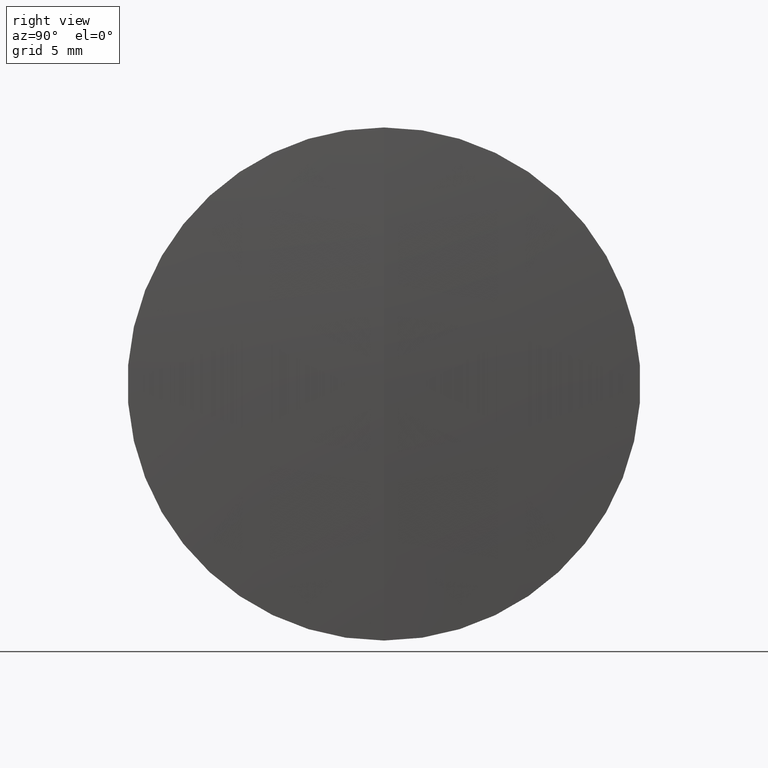
[diagram: clean part render]
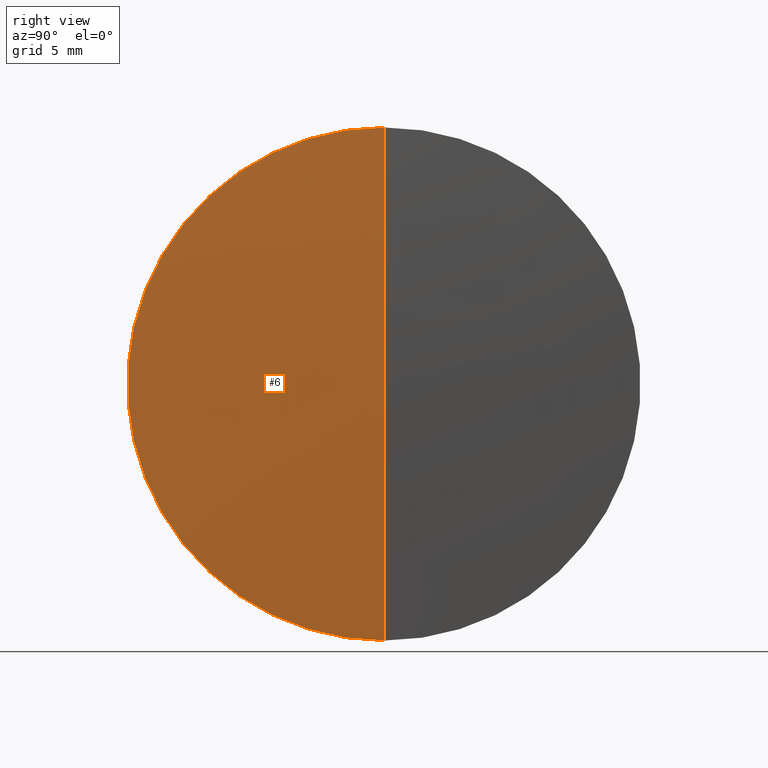
[diagram: same view with one face highlighted and labeled with its STEP entity id]
A machine part, right view. The second image highlights one B-rep face of the part: STEP entity #6.
In plain terms, the highlighted spherical surface has radius 263.988 mm.
Its self-contained STEP definition (entity closure, byte-faithful):
#6 = ADVANCED_FACE ( 'NONE', ( #157 ), #175, .T. ) ;
#15 = AXIS2_PLACEMENT_3D ( 'NONE', #79, #249, #52 ) ;
#31 = VERTEX_POINT ( 'NONE', #293 ) ;
#36 = CIRCLE ( 'NONE', #90, 263.9880000000000000 ) ;
#52 = DIRECTION ( 'NONE',  ( 0.0000000000000000000, -1.224646799147353500E-016, 1.000000000000000000 ) ) ;
#56 = CIRCLE ( 'NONE', #15, 263.9880000000000000 ) ;
#76 = AXIS2_PLACEMENT_3D ( 'NONE', #94, #273, #95 ) ;
#78 = EDGE_CURVE ( 'NONE', #148, #31, #181, .T. ) ;
#79 = CARTESIAN_POINT ( 'NONE',  ( 0.2512281870269972300, 0.0000000000000000000, 0.0000000000000000000 ) ) ;
#89 = DIRECTION ( 'NONE',  ( 0.0000000000000000000, -1.000000000000000000, 0.0000000000000000000 ) ) ;
#90 = AXIS2_PLACEMENT_3D ( 'NONE', #287, #89, #262 ) ;
#94 = CARTESIAN_POINT ( 'NONE',  ( 0.2512281870269972300, 0.0000000000000000000, 0.0000000000000000000 ) ) ;
#95 = DIRECTION ( 'NONE',  ( 0.0000000000000000000, 0.0000000000000000000, 1.000000000000000000 ) ) ;
#119 = DIRECTION ( 'NONE',  ( -1.000000000000000000, -0.0000000000000000000, -0.0000000000000000000 ) ) ;
#132 = ORIENTED_EDGE ( 'NONE', *, *, #78, .F. ) ;
#148 = VERTEX_POINT ( 'NONE', #307 ) ;
#157 = FACE_OUTER_BOUND ( 'NONE', #226, .T. ) ;
#175 = SPHERICAL_SURFACE ( 'NONE', #76, 263.9880000000000000 ) ;
#181 = CIRCLE ( 'NONE', #271, 15.74999999999994100 ) ;
#184 = CARTESIAN_POINT ( 'NONE',  ( 264.2392281870269800, 0.0000000000000000000, 1.616460296066557600E-014 ) ) ;
#201 = EDGE_CURVE ( 'NONE', #309, #31, #36, .T. ) ;
#226 = EDGE_LOOP ( 'NONE', ( #264, #272, #132 ) ) ;
#249 = DIRECTION ( 'NONE',  ( -0.0000000000000000000, 1.000000000000000000, 1.224646799147353200E-016 ) ) ;
#262 = DIRECTION ( 'NONE',  ( 0.0000000000000000000, 0.0000000000000000000, -1.000000000000000000 ) ) ;
#264 = ORIENTED_EDGE ( 'NONE', *, *, #336, .F. ) ;
#271 = AXIS2_PLACEMENT_3D ( 'NONE', #290, #119, #315 ) ;
#272 = ORIENTED_EDGE ( 'NONE', *, *, #201, .T. ) ;
#273 = DIRECTION ( 'NONE',  ( 0.0000000000000000000, 1.000000000000000000, 0.0000000000000000000 ) ) ;
#287 = CARTESIAN_POINT ( 'NONE',  ( 0.2512281870269972300, 0.0000000000000000000, 0.0000000000000000000 ) ) ;
#290 = CARTESIAN_POINT ( 'NONE',  ( 263.7689726445872200, 0.0000000000000000000, 0.0000000000000000000 ) ) ;
#293 = CARTESIAN_POINT ( 'NONE',  ( 263.7689726445872200, 0.0000000000000000000, 15.74999999999994100 ) ) ;
#307 = CARTESIAN_POINT ( 'NONE',  ( 263.7689726445872200, 1.928818708657077400E-015, -15.74999999999994100 ) ) ;
#309 = VERTEX_POINT ( 'NONE', #184 ) ;
#315 = DIRECTION ( 'NONE',  ( 0.0000000000000000000, 0.0000000000000000000, 1.000000000000000000 ) ) ;
#336 = EDGE_CURVE ( 'NONE', #309, #148, #56, .T. ) ;